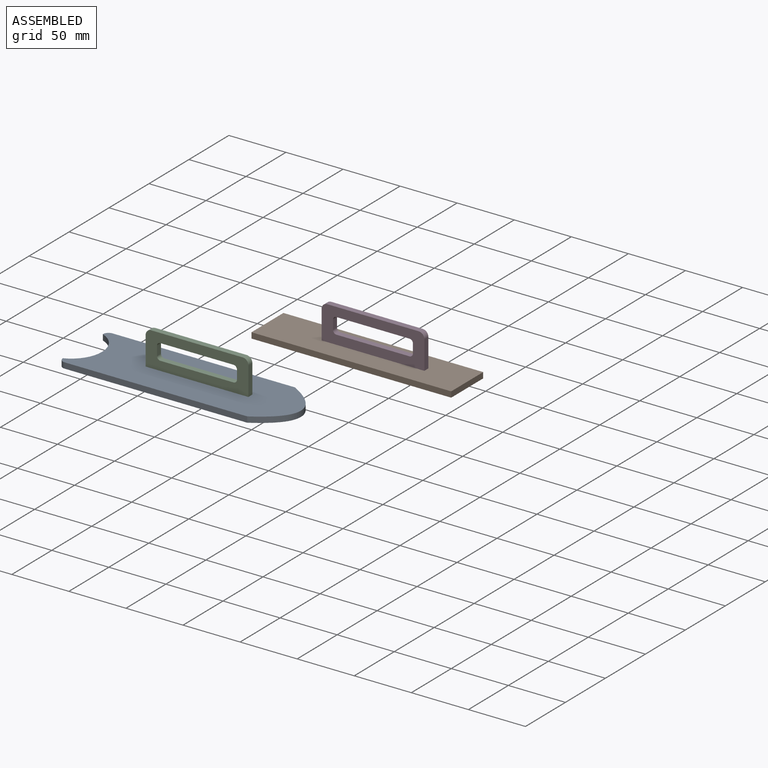
[diagram: assembled view]
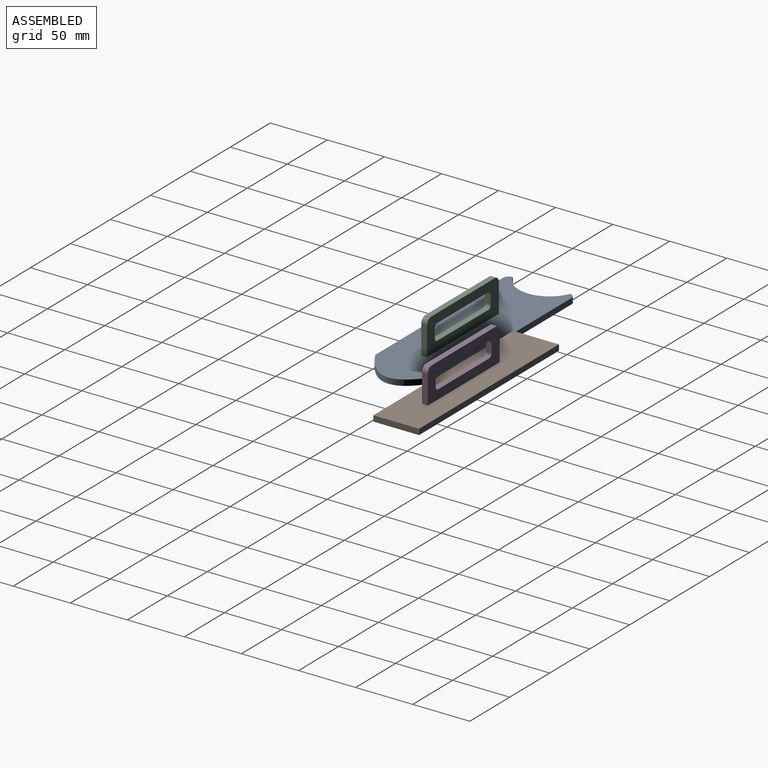
[diagram: assembled view, second angle]
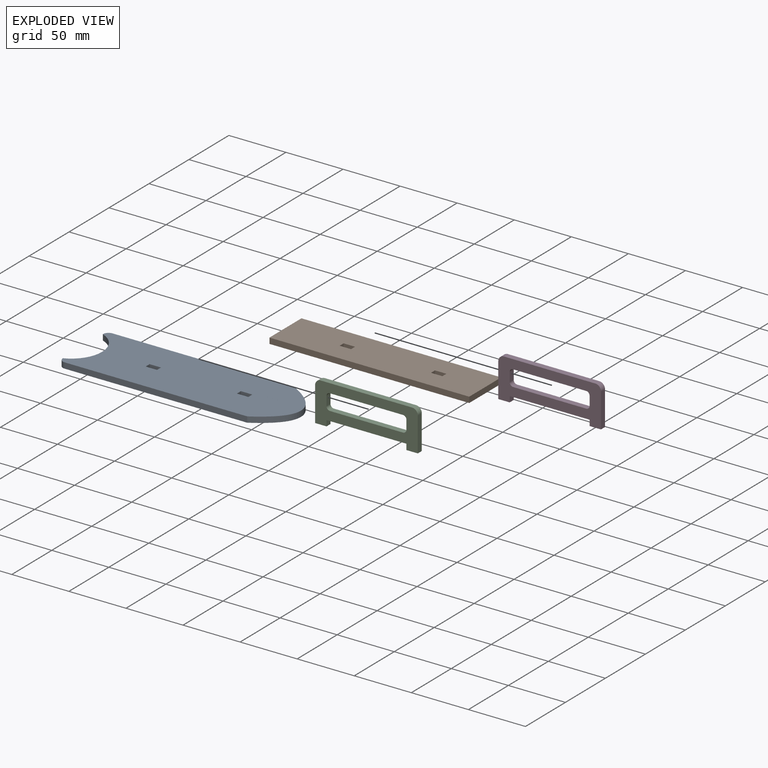
[diagram: exploded view]
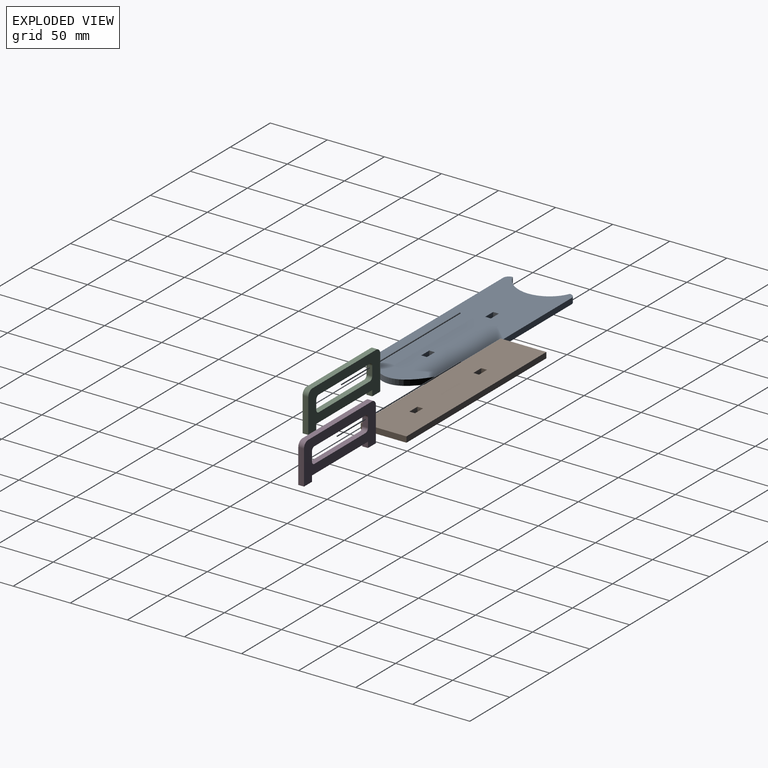
[diagram: exploded view, second angle]
ASSEMBLY  parts=4 mates=2
PART A: 16 faces, bbox 200.7x60x5 mm
  f0: plane 10x5mm, normal (0,1,0), area 50mm2, adj f1,f13,f14,f15
  f1: plane 5x5mm, normal (1,0,0), area 25mm2, adj f0,f2,f14,f15
  f2: plane 10x5mm, normal (0,-1,0), area 50mm2, adj f1,f13,f14,f15
  f3: plane 5x5mm, normal (1,0,0), area 25mm2, adj f4,f11,f14,f15
  f4: plane 10x5mm, normal (0,-1,0), area 50mm2, adj f3,f5,f14,f15
  f5: plane 5x5mm, normal (-1,0,0), area 25mm2, adj f4,f11,f14,f15
  f6: cylinder r=26.98mm len=50mm, axis (0,0,-1), area 319.7mm2, adj f7,f12,f14,f15
  f7: cylinder r=5mm len=5mm, axis (0,0,-1), area 39.3mm2, adj f6,f8,f14,f15
  f8: plane 160x5mm, normal (0,-1,0), area 800mm2, adj f7,f9,f14,f15
  f9: extruded ~60x25.96mm, area 413.9mm2, adj f8,f10,f14,f15
  f10: plane 160x5mm, normal (0,1,0), area 800mm2, adj f9,f12,f14,f15
  f11: plane 10x5mm, normal (0,1,0), area 50mm2, adj f3,f5,f14,f15
  f12: cylinder r=5mm len=5mm, axis (0,0,-1), area 39.3mm2, adj f6,f10,f14,f15
  f13: plane 5x5mm, normal (-1,0,0), area 25mm2, adj f0,f2,f14,f15
  f14: plane 200.7x60mm, normal (0,0,1), area 10218.9mm2, adj f0,f1,f2,f3,f4,f5,f6,f7
  f15: plane 200.7x60mm, normal (0,0,-1), area 10218.9mm2, adj f0,f1,f2,f3,f4,f5,f6,f7
PART B: 14 faces, bbox 175x40x5 mm
  f0: plane 10x5mm, normal (0,1,0), area 50mm2, adj f1,f11,f12,f13
  f1: plane 5x5mm, normal (1,0,0), area 25mm2, adj f0,f2,f12,f13
  f2: plane 10x5mm, normal (0,-1,0), area 50mm2, adj f1,f11,f12,f13
  f3: plane 175x5mm, normal (0,1,0), area 875mm2, adj f4,f9,f12,f13
  f4: plane 40x5mm, normal (-1,0,0), area 200mm2, adj f3,f5,f12,f13
  f5: plane 175x5mm, normal (0,-1,0), area 875mm2, adj f4,f9,f12,f13
  f6: plane 5x5mm, normal (1,0,0), area 25mm2, adj f7,f10,f12,f13
  f7: plane 10x5mm, normal (0,-1,0), area 50mm2, adj f6,f8,f12,f13
  f8: plane 5x5mm, normal (-1,0,0), area 25mm2, adj f7,f10,f12,f13
  f9: plane 40x5mm, normal (1,0,0), area 200mm2, adj f3,f5,f12,f13
  f10: plane 10x5mm, normal (0,1,0), area 50mm2, adj f6,f8,f12,f13
  f11: plane 5x5mm, normal (-1,0,0), area 25mm2, adj f0,f2,f12,f13
  f12: plane 175x40mm, normal (0,0,1), area 6900mm2, adj f0,f1,f2,f3,f4,f5,f6,f7
  f13: plane 175x40mm, normal (0,0,-1), area 6900mm2, adj f0,f1,f2,f3,f4,f5,f6,f7
PART C: 20 faces, bbox 90x5x35 mm
  f0: cylinder r=3mm len=5mm, axis (0,1,0), area 23.6mm2, adj f1,f17,f18,f19
  f1: plane 8x5mm, normal (-1,0,0), area 40mm2, adj f0,f2,f18,f19
  f2: cylinder r=3mm len=5mm, axis (0,1,0), area 23.6mm2, adj f1,f3,f18,f19
  f3: plane 64x5mm, normal (0,0,1), area 320mm2, adj f2,f4,f18,f19
  f4: cylinder r=3mm len=5mm, axis (0,1,0), area 23.6mm2, adj f3,f5,f18,f19
  f5: plane 8x5mm, normal (1,0,0), area 40mm2, adj f4,f6,f18,f19
  f6: cylinder r=3mm len=5mm, axis (0,1,0), area 23.6mm2, adj f5,f17,f18,f19
  f7: plane 5x5mm, normal (1,0,0), area 25mm2, adj f8,f16,f18,f19
  f8: plane 70x5mm, normal (0,0,-1), area 350mm2, adj f7,f9,f18,f19
  f9: plane 5x5mm, normal (-1,0,0), area 25mm2, adj f8,f10,f18,f19
  f10: plane 10x5mm, normal (0,0,-1), area 50mm2, adj f9,f11,f18,f19
  f11: plane 30x5mm, normal (1,0,0), area 150mm2, adj f10,f12,f18,f19
  f12: cylinder r=5mm len=5mm, axis (0,1,0), area 39.3mm2, adj f11,f13,f18,f19
  f13: plane 80x5mm, normal (0,0,1), area 400mm2, adj f12,f14,f18,f19
  f14: cylinder r=5mm len=5mm, axis (0,1,0), area 39.3mm2, adj f13,f15,f18,f19
  f15: plane 30x5mm, normal (-1,0,0), area 150mm2, adj f14,f16,f18,f19
  f16: plane 10x5mm, normal (0,0,-1), area 50mm2, adj f7,f15,f18,f19
  f17: plane 64x5mm, normal (0,0,-1), area 320mm2, adj f0,f6,f18,f19
  f18: plane 90x35mm, normal (0,-1,0), area 1817mm2, adj f0,f1,f2,f3,f4,f5,f6,f7
  f19: plane 90x35mm, normal (0,1,0), area 1817mm2, adj f0,f1,f2,f3,f4,f5,f6,f7
PART D: same geometry as C
PLACE A t=(-23.52,-20.38,-13.11)mm
PLACE B t=(79.62,52.51,7.31)mm
PLACE C t=(-16.81,-17.88,6.89)mm
PLACE D t=(86.33,55.01,27.31)mm
MATE fastened C.f9 <-> A.f1  axis (-1,0,0) through (18.19,-20.38,-10.61)mm
MATE fastened D.f7 <-> B.f8  axis (1,0,0) through (51.33,52.51,9.81)mm
